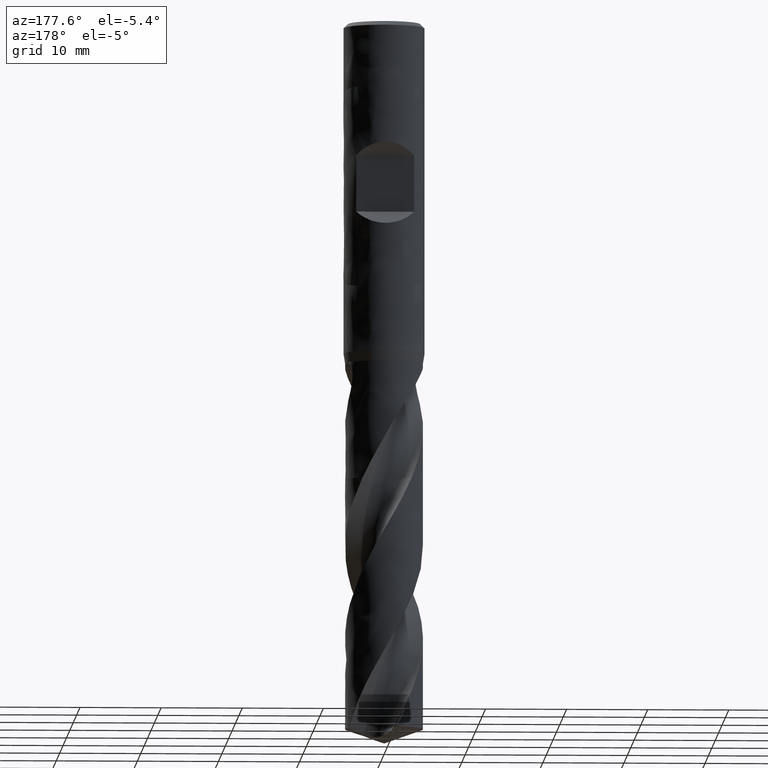
[diagram: clean part render]
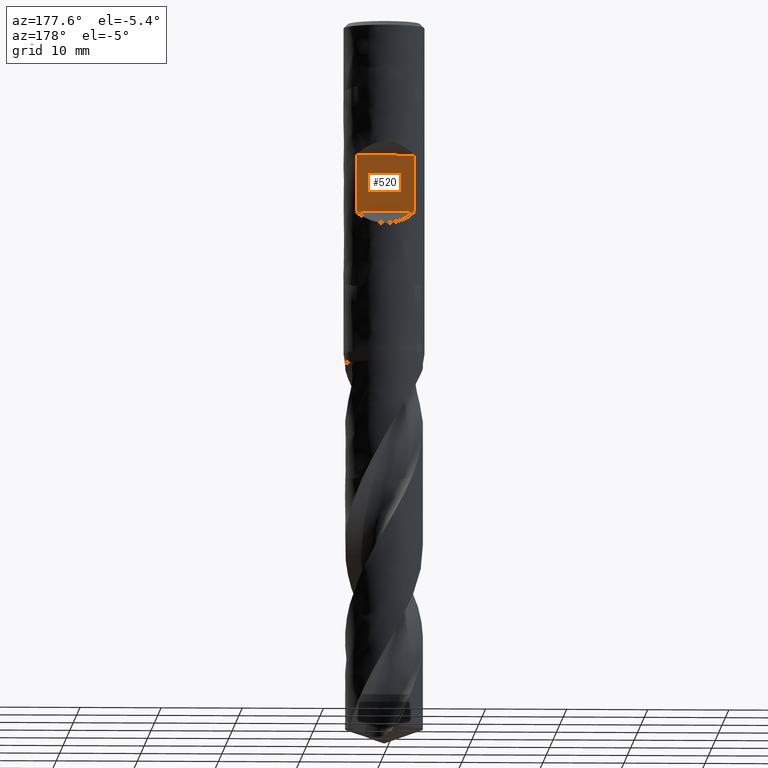
[diagram: same view with one face highlighted and labeled with its STEP entity id]
A machine part, auxiliary view. The second image highlights one B-rep face of the part: STEP entity #520.
In plain terms, the highlighted planar face has unit normal (0, 1, 0).
Its self-contained STEP definition (entity closure, byte-faithful):
#318 = EDGE_CURVE('', #319, #321, #323, .T.);
#319 = VERTEX_POINT('', #320);
#320 = CARTESIAN_POINT('', (3.57071421427142, 3.5, -16.5));
#321 = VERTEX_POINT('', #322);
#322 = CARTESIAN_POINT('', (3.57071421427142, 3.5, -23.5));
#323 = LINE('', #324, #325);
#324 = CARTESIAN_POINT('', (3.57071421427142, 3.5, -16.5));
#325 = VECTOR('', #326, 7.);
#326 = DIRECTION('', (4.44089209850063E-16, 4.44089209850063E-16, -7.));
#329 = VERTEX_POINT('', #330);
#330 = CARTESIAN_POINT('', (-3.57071421427143, 3.5, -16.5));
#415 = EDGE_CURVE('', #329, #416, #418, .T.);
#416 = VERTEX_POINT('', #417);
#417 = CARTESIAN_POINT('', (-3.57071421427142, 3.5, -23.5));
#418 = LINE('', #419, #420);
#419 = CARTESIAN_POINT('', (-3.57071421427143, 3.5, -16.5));
#420 = VECTOR('', #421, 7.);
#421 = DIRECTION('', (8.88178419700125E-16, 8.88178419700125E-16, -7.));
#520 = ADVANCED_FACE('', (#521), #537, .T.);
#521 = FACE_OUTER_BOUND('', #522, .T.);
#522 = EDGE_LOOP('', (#523, #524, #530, #531));
#523 = ORIENTED_EDGE('', *, *, #318, .T.);
#524 = ORIENTED_EDGE('', *, *, #525, .T.);
#525 = EDGE_CURVE('', #321, #416, #526, .T.);
#526 = LINE('', #527, #528);
#527 = CARTESIAN_POINT('', (3.57071421427142, 3.5, -23.5));
#528 = VECTOR('', #529, 7.14142842854285);
#529 = DIRECTION('', (-7.14142842854285, 4.44089209850063E-16, 0.));
#530 = ORIENTED_EDGE('', *, *, #415, .F.);
#531 = ORIENTED_EDGE('', *, *, #532, .F.);
#532 = EDGE_CURVE('', #319, #329, #533, .T.);
#533 = LINE('', #534, #535);
#534 = CARTESIAN_POINT('', (3.57071421427142, 3.5, -16.5));
#535 = VECTOR('', #536, 7.14142842854285);
#536 = DIRECTION('', (-7.14142842854285, 4.44089209850063E-16, 0.));
#537 = PLANE('', #538);
#538 = AXIS2_PLACEMENT_3D('', #539, #540, #541);
#539 = CARTESIAN_POINT('', (5., 3.5, -23.5));
#540 = DIRECTION('', (8.88178419700125E-17, 1., 6.34413156928661E-17));
#541 = DIRECTION('', (-1., 8.88178419700125E-17, 0.));